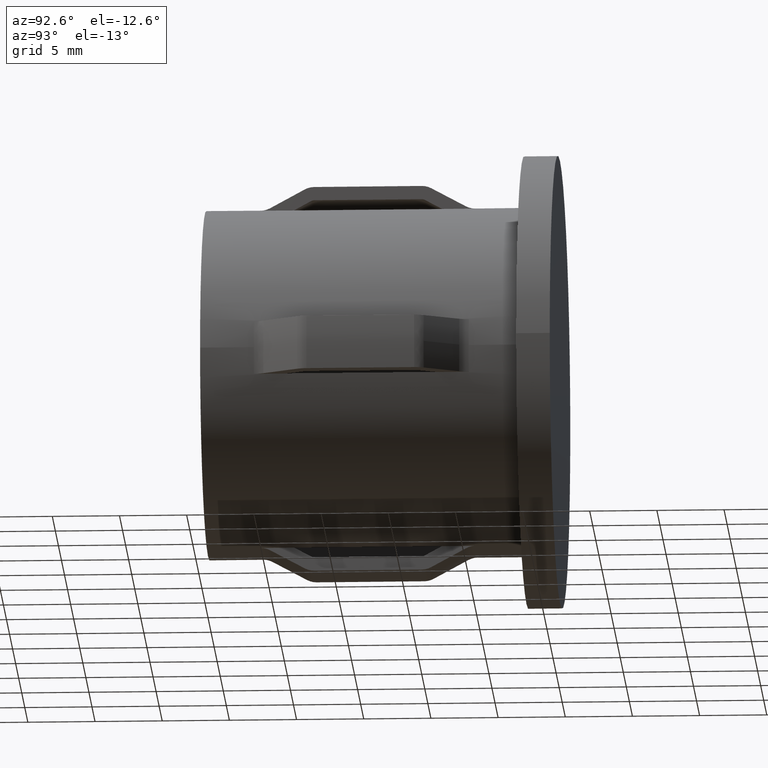
[diagram: clean part render]
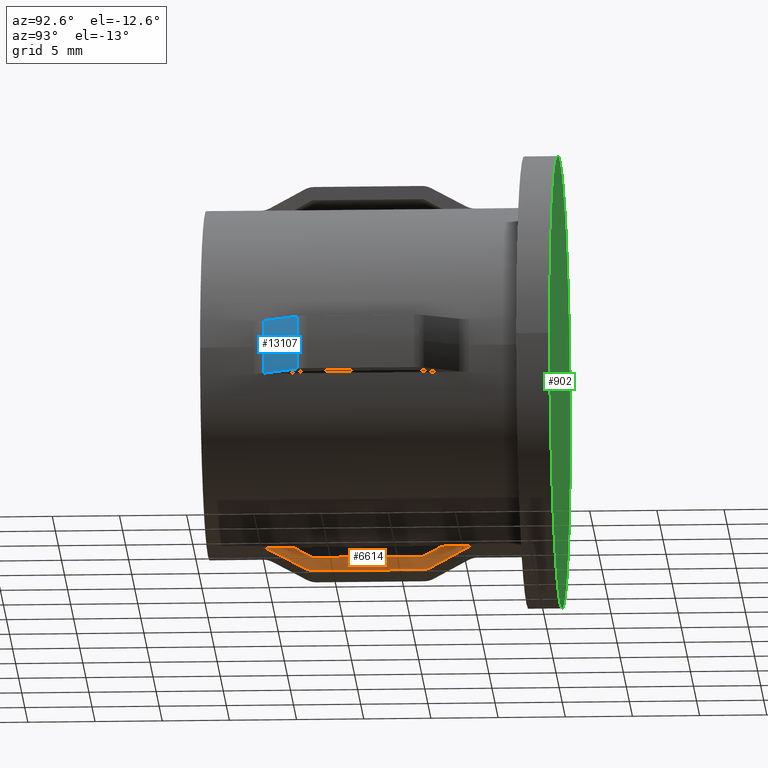
[diagram: same view with three faces highlighted in distinct colors, each labeled with its STEP entity id]
A machine part, auxiliary view with three faces highlighted in distinct colors.
Their STEP definitions:

[orange] entity #6614 — the highlighted planar face has unit normal (-1, 0, -0).
#79 = CARTESIAN_POINT ( 'NONE',  ( 2.000000000000004000, 16.23750266983346100, -13.54311138844929400 ) ) ;
#130 = CARTESIAN_POINT ( 'NONE',  ( 2.000000000000004000, 17.21099630424840800, -13.01172473102613100 ) ) ;
#344 = ORIENTED_EDGE ( 'NONE', *, *, #9128, .F. ) ;
#422 = EDGE_CURVE ( 'NONE', #5947, #8624, #4356, .T. ) ;
#428 = CARTESIAN_POINT ( 'NONE',  ( 2.000000000000004000, 16.71250800950036800, -14.43205297699418900 ) ) ;
#507 = CARTESIAN_POINT ( 'NONE',  ( 2.000000000000004000, 6.763197409493547400, -12.99761089599358100 ) ) ;
#565 = CARTESIAN_POINT ( 'NONE',  ( 2.000000000000004000, 5.519878851326408800, -13.46818463121638300 ) ) ;
#583 = CARTESIAN_POINT ( 'NONE',  ( 2.000000000000004000, 7.958963710358464300, -13.60376786041281200 ) ) ;
#591 = CARTESIAN_POINT ( 'NONE',  ( 2.000000000000004000, 16.08296497210347600, -13.59851344099409200 ) ) ;
#862 = CARTESIAN_POINT ( 'NONE',  ( 2.000000000000004000, 19.51312980253462100, -12.92191155553233600 ) ) ;
#893 = VERTEX_POINT ( 'NONE', #2225 ) ;
#1106 = B_SPLINE_CURVE_WITH_KNOTS ( 'NONE', 3,
 ( #5556, #2291, #8904, #3222, #12265, #4458 ),
 .UNSPECIFIED., .F., .F.,
 ( 4, 2, 4 ),
 ( 0.008903600624988164700, 0.009272269858450147400, 0.009640939091912131800 ),
 .UNSPECIFIED. ) ;
#1189 = CARTESIAN_POINT ( 'NONE',  ( 2.000000000000004000, 26.19999999999999900, -13.60376786041279500 ) ) ;
#1257 = CARTESIAN_POINT ( 'NONE',  ( 2.000000000000004000, 17.51576344125173900, -12.84523257866513300 ) ) ;
#1264 = EDGE_CURVE ( 'NONE', #10358, #8409, #2000, .T. ) ;
#1471 = ORIENTED_EDGE ( 'NONE', *, *, #13452, .F. ) ;
#1526 = CARTESIAN_POINT ( 'NONE',  ( 2.000000000000004000, 6.832820700711934600, -14.18428084532560300 ) ) ;
#1588 = CARTESIAN_POINT ( 'NONE',  ( 2.000000000000004000, 7.877065883082498700, -14.61377774567548800 ) ) ;
#1852 = ORIENTED_EDGE ( 'NONE', *, *, #10068, .F. ) ;
#1964 = ORIENTED_EDGE ( 'NONE', *, *, #9785, .F. ) ;
#2000 = B_SPLINE_CURVE_WITH_KNOTS ( 'NONE', 3,
 ( #9854, #9809, #3230, #862, #11089, #7785 ),
 .UNSPECIFIED., .F., .F.,
 ( 4, 2, 4 ),
 ( 0.008733831604551458400, 0.009102722425335467100, 0.009471613246119475700 ),
 .UNSPECIFIED. ) ;
#2045 = VERTEX_POINT ( 'NONE', #13394 ) ;
#2190 = EDGE_CURVE ( 'NONE', #10358, #13120, #6460, .T. ) ;
#2225 = CARTESIAN_POINT ( 'NONE',  ( 2.000000000000002700, 8.000000000000003600, -13.60376786041279500 ) ) ;
#2291 = CARTESIAN_POINT ( 'NONE',  ( 2.000000000000004000, 16.60460272411954500, -14.49085572785535600 ) ) ;
#2319 = VERTEX_POINT ( 'NONE', #11735 ) ;
#2383 = DIRECTION ( 'NONE',  ( -3.438152136007668400E-017, 0.0000000000000000000, 1.000000000000000000 ) ) ;
#2389 = EDGE_CURVE ( 'NONE', #2045, #11551, #11924, .T. ) ;
#2487 = DIRECTION ( 'NONE',  ( -1.000000000000000000, 0.0000000000000000000, -3.438152136007668400E-017 ) ) ;
#2569 = CARTESIAN_POINT ( 'NONE',  ( 2.000000000000004000, 20.00000000000000000, -14.61377774567548800 ) ) ;
#2693 = CARTESIAN_POINT ( 'NONE',  ( 2.000000000000004000, 7.475868907025222200, -13.38671445498841800 ) ) ;
#2791 = CARTESIAN_POINT ( 'NONE',  ( 2.000000000000004000, 20.00000000000000000, -12.84523257866513300 ) ) ;
#2835 = CARTESIAN_POINT ( 'NONE',  ( 2.000000000000004000, 7.189264759861260700, -13.23027302087236700 ) ) ;
#2943 = ORIENTED_EDGE ( 'NONE', *, *, #2389, .F. ) ;
#2971 = CARTESIAN_POINT ( 'NONE',  ( 2.000000000000004000, 16.71250800950036800, -14.43205297699418900 ) ) ;
#2975 = CARTESIAN_POINT ( 'NONE',  ( 2.000000000000004000, 4.489269370429813200, -12.92274571250335800 ) ) ;
#3036 = ORIENTED_EDGE ( 'NONE', *, *, #7609, .F. ) ;
#3181 = EDGE_CURVE ( 'NONE', #13081, #2319, #8178, .T. ) ;
#3222 = CARTESIAN_POINT ( 'NONE',  ( 2.000000000000004000, 16.24759394174816800, -14.59823789806946200 ) ) ;
#3230 = CARTESIAN_POINT ( 'NONE',  ( 2.000000000000004000, 19.75437373873601700, -12.86044299354603700 ) ) ;
#3318 = CARTESIAN_POINT ( 'NONE',  ( 2.000000000000004000, 7.762497330166533900, -13.54311138844931300 ) ) ;
#3367 = CARTESIAN_POINT ( 'NONE',  ( 2.000000000000004000, 20.00000000000000000, -12.84523257866513300 ) ) ;
#3370 = CARTESIAN_POINT ( 'NONE',  ( 2.000000000000004000, 7.999999999999996400, -14.61377774567548800 ) ) ;
#3740 = EDGE_CURVE ( 'NONE', #12416, #893, #8887, .T. ) ;
#3827 = CARTESIAN_POINT ( 'NONE',  ( 2.000000000000004000, 6.623713609272060800, -12.92142791447136400 ) ) ;
#3886 = CARTESIAN_POINT ( 'NONE',  ( 2.000000000000004000, 5.923637896289913700, -13.68844346346802300 ) ) ;
#3933 = ORIENTED_EDGE ( 'NONE', *, *, #9577, .T. ) ;
#4091 = CARTESIAN_POINT ( 'NONE',  ( 2.000000000000004000, 16.23750266983346100, -13.54311138844929400 ) ) ;
#4150 = CARTESIAN_POINT ( 'NONE',  ( 2.000000000000004000, 4.000000000000000000, -12.84523257866513300 ) ) ;
#4356 = B_SPLINE_CURVE_WITH_KNOTS ( 'NONE', 3,
 ( #5086, #8649, #2975, #8792, #10864, #4150 ),
 .UNSPECIFIED., .F., .F.,
 ( 4, 2, 4 ),
 ( 0.008780512722614439500, 0.009149394502732206500, 0.009518276282849973500 ),
 .UNSPECIFIED. ) ;
#4458 = CARTESIAN_POINT ( 'NONE',  ( 2.000000000000004000, 16.00000000000000000, -14.61377774567548800 ) ) ;
#4475 = LINE ( 'NONE', #1189, #6611 ) ;
#4490 = ORIENTED_EDGE ( 'NONE', *, *, #1264, .F. ) ;
#4645 = DIRECTION ( 'NONE',  ( -0.0000000000000000000, -1.000000000000000000, -0.0000000000000000000 ) ) ;
#4705 = PLANE ( 'NONE',  #11153 ) ;
#4813 = CARTESIAN_POINT ( 'NONE',  ( 2.000000000000004000, 19.28749199049963200, -13.02739711600255700 ) ) ;
#4894 = CARTESIAN_POINT ( 'NONE',  ( 2.000000000000004000, 7.512631403503766200, -14.53709873236259900 ) ) ;
#4974 = CARTESIAN_POINT ( 'NONE',  ( 2.000000000000004000, 7.395658272290249100, -14.49099795728196600 ) ) ;
#5011 = CARTESIAN_POINT ( 'NONE',  ( 2.000000000000004000, 6.378199766889109900, -13.93641627807914900 ) ) ;
#5086 = CARTESIAN_POINT ( 'NONE',  ( 2.000000000000004000, 4.712508009500367300, -13.02739711600256100 ) ) ;
#5131 = CARTESIAN_POINT ( 'NONE',  ( 2.000000000000004000, 16.83631114039712500, -14.36458672975465400 ) ) ;
#5284 = CARTESIAN_POINT ( 'NONE',  ( 2.000000000000004000, 16.20129839814044500, -13.56286601364981900 ) ) ;
#5394 = VERTEX_POINT ( 'NONE', #11043 ) ;
#5535 = ORIENTED_EDGE ( 'NONE', *, *, #11312, .F. ) ;
#5556 = CARTESIAN_POINT ( 'NONE',  ( 2.000000000000004000, 16.71250800950036800, -14.43205297699418900 ) ) ;
#5778 = CARTESIAN_POINT ( 'NONE',  ( 2.000000000000004000, 16.35879584615232200, -13.47692855627201800 ) ) ;
#5831 = CARTESIAN_POINT ( 'NONE',  ( 2.000000000000004000, 17.51576344125173900, -12.84523257866513300 ) ) ;
#5920 = B_SPLINE_CURVE_WITH_KNOTS ( 'NONE', 3,
 ( #14176, #7466, #13091, #13047, #10912, #5131, #2971 ),
 .UNSPECIFIED., .F., .F.,
 ( 4, 3, 4 ),
 ( 0.003473726059147197900, 0.005983937291976790800, 0.006406914848276793100 ),
 .UNSPECIFIED. ) ;
#5946 = CARTESIAN_POINT ( 'NONE',  ( 2.000000000000004000, 4.000000000000000000, -12.84523257866513300 ) ) ;
#5947 = VERTEX_POINT ( 'NONE', #6430 ) ;
#6043 = CARTESIAN_POINT ( 'NONE',  ( 2.000000000000002700, 8.000000000000003600, -13.60376786041279500 ) ) ;
#6121 = CARTESIAN_POINT ( 'NONE',  ( 2.000000000000004000, 4.712508009500367300, -13.02739711600256100 ) ) ;
#6195 = CARTESIAN_POINT ( 'NONE',  ( 2.000000000000004000, 6.902687610284863800, -13.07378215503952000 ) ) ;
#6430 = CARTESIAN_POINT ( 'NONE',  ( 2.000000000000004000, 4.712508009500367300, -13.02739711600256100 ) ) ;
#6440 = B_SPLINE_CURVE_WITH_KNOTS ( 'NONE', 3,
 ( #79, #5778, #10268, #6906, #12650, #130, #5831 ),
 .UNSPECIFIED., .F., .F.,
 ( 4, 3, 4 ),
 ( 0.004868062629946854500, 0.005282586139643083300, 0.006324422785901354100 ),
 .UNSPECIFIED. ) ;
#6460 = LINE ( 'NONE', #3367, #7171 ) ;
#6611 = VECTOR ( 'NONE', #14360, 1000.000000000000000 ) ;
#6614 = ADVANCED_FACE ( 'NONE', ( #14226 ), #4705, .F. ) ;
#6906 = CARTESIAN_POINT ( 'NONE',  ( 2.000000000000004000, 16.60136894398342700, -13.34453860178169600 ) ) ;
#6938 = CARTESIAN_POINT ( 'NONE',  ( 2.000000000000004000, 7.287491990499630000, -14.43205297699419300 ) ) ;
#7077 = CARTESIAN_POINT ( 'NONE',  ( 2.000000000000004000, 7.753247571516230800, -14.59839509575663100 ) ) ;
#7103 = ORIENTED_EDGE ( 'NONE', *, *, #14059, .F. ) ;
#7158 = CARTESIAN_POINT ( 'NONE',  ( 2.000000000000004000, 7.287491990499630000, -14.43205297699419300 ) ) ;
#7171 = VECTOR ( 'NONE', #4645, 1000.000000000000000 ) ;
#7286 = ORIENTED_EDGE ( 'NONE', *, *, #422, .F. ) ;
#7466 = CARTESIAN_POINT ( 'NONE',  ( 2.000000000000004000, 18.55312756011672800, -13.42844339235147500 ) ) ;
#7609 = EDGE_CURVE ( 'NONE', #11551, #9434, #13851, .T. ) ;
#7785 = CARTESIAN_POINT ( 'NONE',  ( 2.000000000000004000, 19.28749199049963200, -13.02739711600255700 ) ) ;
#8178 = B_SPLINE_CURVE_WITH_KNOTS ( 'NONE', 3,
 ( #9629, #12040, #591, #10763, #5284, #4091 ),
 .UNSPECIFIED., .F., .F.,
 ( 4, 2, 4 ),
 ( 0.003036136518779694600, 0.003159131263739859700, 0.003282126008700024900 ),
 .UNSPECIFIED. ) ;
#8372 = EDGE_LOOP ( 'NONE', ( #14492, #1471, #10317, #7103, #9326, #5535, #3933, #7286, #344, #3036, #2943, #1964, #1852, #4490 ) ) ;
#8409 = VERTEX_POINT ( 'NONE', #4813 ) ;
#8624 = VERTEX_POINT ( 'NONE', #5946 ) ;
#8649 = CARTESIAN_POINT ( 'NONE',  ( 2.000000000000004000, 4.604471529493054900, -12.96839694357565500 ) ) ;
#8792 = CARTESIAN_POINT ( 'NONE',  ( 2.000000000000004000, 4.248171644720956800, -12.86087322450340200 ) ) ;
#8887 = B_SPLINE_CURVE_WITH_KNOTS ( 'NONE', 3,
 ( #9529, #10705, #11837, #14122, #583, #6043 ),
 .UNSPECIFIED., .F., .F.,
 ( 4, 2, 4 ),
 ( 0.003007836548008441900, 0.003130776128305318700, 0.003253715708602195500 ),
 .UNSPECIFIED. ) ;
#8904 = CARTESIAN_POINT ( 'NONE',  ( 2.000000000000004000, 16.48781982078699200, -14.53692629991552100 ) ) ;
#9128 = EDGE_CURVE ( 'NONE', #9434, #5947, #11684, .T. ) ;
#9199 = CARTESIAN_POINT ( 'NONE',  ( 2.000000000000003600, 20.00000000000000000, 6.876304272015349100E-017 ) ) ;
#9326 = ORIENTED_EDGE ( 'NONE', *, *, #3740, .F. ) ;
#9393 = CARTESIAN_POINT ( 'NONE',  ( 2.000000000000004000, 7.999999999999996400, -14.61377774567548800 ) ) ;
#9434 = VERTEX_POINT ( 'NONE', #6938 ) ;
#9482 = CARTESIAN_POINT ( 'NONE',  ( 2.000000000000004000, 7.287491990499630000, -14.43205297699419300 ) ) ;
#9529 = CARTESIAN_POINT ( 'NONE',  ( 2.000000000000004000, 7.762497330166533900, -13.54311138844931300 ) ) ;
#9577 = EDGE_CURVE ( 'NONE', #5394, #8624, #13029, .T. ) ;
#9629 = CARTESIAN_POINT ( 'NONE',  ( 2.000000000000004000, 16.00000000000000000, -13.60376786041279300 ) ) ;
#9785 = EDGE_CURVE ( 'NONE', #14177, #2045, #1106, .T. ) ;
#9809 = CARTESIAN_POINT ( 'NONE',  ( 2.000000000000004000, 19.87646638025942300, -12.84523257866511300 ) ) ;
#9854 = CARTESIAN_POINT ( 'NONE',  ( 2.000000000000004000, 19.99999999999999300, -12.84523257866512600 ) ) ;
#10068 = EDGE_CURVE ( 'NONE', #8409, #14177, #5920, .T. ) ;
#10197 = VECTOR ( 'NONE', #10686, 1000.000000000000000 ) ;
#10268 = CARTESIAN_POINT ( 'NONE',  ( 2.000000000000004000, 16.48008467017158900, -13.41073774696090800 ) ) ;
#10317 = ORIENTED_EDGE ( 'NONE', *, *, #3181, .F. ) ;
#10340 = VECTOR ( 'NONE', #13971, 1000.000000000000000 ) ;
#10358 = VERTEX_POINT ( 'NONE', #11351 ) ;
#10686 = DIRECTION ( 'NONE',  ( -0.0000000000000000000, -1.000000000000000000, -0.0000000000000000000 ) ) ;
#10705 = CARTESIAN_POINT ( 'NONE',  ( 2.000000000000004000, 7.798659959552558100, -13.56284329179605300 ) ) ;
#10763 = CARTESIAN_POINT ( 'NONE',  ( 2.000000000000004000, 16.16316286643450400, -13.57792859815825500 ) ) ;
#10864 = CARTESIAN_POINT ( 'NONE',  ( 2.000000000000004000, 4.123647177543184700, -12.84523257866512200 ) ) ;
#10912 = CARTESIAN_POINT ( 'NONE',  ( 2.000000000000004000, 16.96011052680198400, -14.29711361073644200 ) ) ;
#11043 = CARTESIAN_POINT ( 'NONE',  ( 2.000000000000004000, 6.484236558748251300, -12.84523257866513300 ) ) ;
#11089 = CARTESIAN_POINT ( 'NONE',  ( 2.000000000000004000, 19.39643253590401500, -12.96790322132268100 ) ) ;
#11153 = AXIS2_PLACEMENT_3D ( 'NONE', #9199, #2487, #2383 ) ;
#11312 = EDGE_CURVE ( 'NONE', #5394, #12416, #14256, .T. ) ;
#11351 = CARTESIAN_POINT ( 'NONE',  ( 2.000000000000004000, 19.99999999999999300, -12.84523257866512600 ) ) ;
#11420 = CARTESIAN_POINT ( 'NONE',  ( 2.000000000000004000, 16.00000000000000000, -13.60376786041279300 ) ) ;
#11551 = VERTEX_POINT ( 'NONE', #3370 ) ;
#11684 = B_SPLINE_CURVE_WITH_KNOTS ( 'NONE', 3,
 ( #7158, #1526, #5011, #3886, #565, #12925, #6121 ),
 .UNSPECIFIED., .F., .F.,
 ( 4, 3, 4 ),
 ( 0.004430535611126604400, 0.005983935884358522300, 0.007363724876988431800 ),
 .UNSPECIFIED. ) ;
#11735 = CARTESIAN_POINT ( 'NONE',  ( 2.000000000000004000, 16.23750266983346100, -13.54311138844929400 ) ) ;
#11768 = CARTESIAN_POINT ( 'NONE',  ( 2.000000000000004000, 7.762497330166533900, -13.54311138844931300 ) ) ;
#11837 = CARTESIAN_POINT ( 'NONE',  ( 2.000000000000004000, 7.837574834498182600, -13.57818986444574000 ) ) ;
#11924 = LINE ( 'NONE', #2569, #10340 ) ;
#12040 = CARTESIAN_POINT ( 'NONE',  ( 2.000000000000004000, 16.04150043018242400, -13.60376786041278900 ) ) ;
#12265 = CARTESIAN_POINT ( 'NONE',  ( 2.000000000000004000, 16.12294147542693800, -14.61377774567548600 ) ) ;
#12416 = VERTEX_POINT ( 'NONE', #3318 ) ;
#12650 = CARTESIAN_POINT ( 'NONE',  ( 2.000000000000004000, 16.90619697346617300, -13.17815796277381300 ) ) ;
#12925 = CARTESIAN_POINT ( 'NONE',  ( 2.000000000000004000, 5.116166389746523700, -13.24784037770894500 ) ) ;
#13029 = LINE ( 'NONE', #2791, #10197 ) ;
#13047 = CARTESIAN_POINT ( 'NONE',  ( 2.000000000000004000, 17.08390600611519300, -14.22963332444452300 ) ) ;
#13081 = VERTEX_POINT ( 'NONE', #11420 ) ;
#13091 = CARTESIAN_POINT ( 'NONE',  ( 2.000000000000004000, 17.81858497931024500, -13.82916355188984000 ) ) ;
#13120 = VERTEX_POINT ( 'NONE', #1257 ) ;
#13394 = CARTESIAN_POINT ( 'NONE',  ( 2.000000000000004000, 16.00000000000000000, -14.61377774567548800 ) ) ;
#13452 = EDGE_CURVE ( 'NONE', #2319, #13120, #6440, .T. ) ;
#13851 = B_SPLINE_CURVE_WITH_KNOTS ( 'NONE', 3,
 ( #9393, #1588, #7077, #4894, #4974, #9482 ),
 .UNSPECIFIED., .F., .F.,
 ( 4, 2, 4 ),
 ( 0.008844020714262412400, 0.009212683432086601900, 0.009581346149910793100 ),
 .UNSPECIFIED. ) ;
#13971 = DIRECTION ( 'NONE',  ( -0.0000000000000000000, -1.000000000000000000, -0.0000000000000000000 ) ) ;
#13996 = CARTESIAN_POINT ( 'NONE',  ( 2.000000000000004000, 6.484236558748251300, -12.84523257866513300 ) ) ;
#14059 = EDGE_CURVE ( 'NONE', #893, #13081, #4475, .T. ) ;
#14122 = CARTESIAN_POINT ( 'NONE',  ( 2.000000000000004000, 7.917927303715236700, -13.59866907585652200 ) ) ;
#14176 = CARTESIAN_POINT ( 'NONE',  ( 2.000000000000004000, 19.28749199049963200, -13.02739711600255700 ) ) ;
#14177 = VERTEX_POINT ( 'NONE', #428 ) ;
#14226 = FACE_OUTER_BOUND ( 'NONE', #8372, .T. ) ;
#14256 = B_SPLINE_CURVE_WITH_KNOTS ( 'NONE', 3,
 ( #13996, #3827, #507, #6195, #2835, #2693, #11768 ),
 .UNSPECIFIED., .F., .F.,
 ( 4, 3, 4 ),
 ( 0.004805790641137201400, 0.005282588220807113400, 0.006262150178844542700 ),
 .UNSPECIFIED. ) ;
#14360 = DIRECTION ( 'NONE',  ( 7.347880794884120200E-017, 1.000000000000000000, -0.0000000000000000000 ) ) ;
#14492 = ORIENTED_EDGE ( 'NONE', *, *, #2190, .T. ) ;

[blue] entity #13107 — the highlighted conical surface has half-angle 28.36 deg.
#154 = DIRECTION ( 'NONE',  ( -1.000000000000000000, 6.580880510488071800E-017, 0.0000000000000000000 ) ) ;
#301 = DIRECTION ( 'NONE',  ( 7.347880794884120200E-017, 1.000000000000000000, -0.0000000000000000000 ) ) ;
#562 = CARTESIAN_POINT ( 'NONE',  ( 13.15578814950747600, 4.947627587827704500, 2.000000000000000000 ) ) ;
#614 = CARTESIAN_POINT ( 'NONE',  ( 13.02739711600256100, 4.712508009500365500, 2.000000000000000000 ) ) ;
#663 = CARTESIAN_POINT ( 'NONE',  ( 13.09159684043990200, 4.830065500611811800, 2.000000000000000000 ) ) ;
#962 = EDGE_LOOP ( 'NONE', ( #1627, #8294, #4348, #4834 ) ) ;
#1078 = CARTESIAN_POINT ( 'NONE',  ( -1.211481257527979600E-015, 4.712508009500366400, 0.0000000000000000000 ) ) ;
#1135 = CARTESIAN_POINT ( 'NONE',  ( 14.43205297699419300, 7.287491990499629100, -2.000000000000000000 ) ) ;
#1627 = ORIENTED_EDGE ( 'NONE', *, *, #8634, .F. ) ;
#1661 = VERTEX_POINT ( 'NONE', #7939 ) ;
#2024 = DIRECTION ( 'NONE',  ( 7.347880794884120200E-017, 1.000000000000000000, -0.0000000000000000000 ) ) ;
#2176 = AXIS2_PLACEMENT_3D ( 'NONE', #5999, #301, #2584 ) ;
#2333 = CARTESIAN_POINT ( 'NONE',  ( -1.211481257527979600E-015, 4.712508009500366400, 0.0000000000000000000 ) ) ;
#2584 = DIRECTION ( 'NONE',  ( -1.000000000000000000, 5.953076621728368300E-017, 0.0000000000000000000 ) ) ;
#3126 = CARTESIAN_POINT ( 'NONE',  ( 13.02739711600256100, 4.712508009500365500, -1.999999999999999600 ) ) ;
#3333 = EDGE_CURVE ( 'NONE', #1661, #6082, #9706, .T. ) ;
#4167 = AXIS2_PLACEMENT_3D ( 'NONE', #1078, #2024, #5531 ) ;
#4348 = ORIENTED_EDGE ( 'NONE', *, *, #8842, .T. ) ;
#4440 = CARTESIAN_POINT ( 'NONE',  ( 13.02739711600256100, 4.712508009500365500, -1.999999999999999600 ) ) ;
#4582 = CARTESIAN_POINT ( 'NONE',  ( 13.62429162549002700, 5.805800145407471500, -1.999999999999999600 ) ) ;
#4834 = ORIENTED_EDGE ( 'NONE', *, *, #3333, .F. ) ;
#5531 = DIRECTION ( 'NONE',  ( -1.000000000000000000, 6.580880510488071800E-017, 0.0000000000000000000 ) ) ;
#5657 = DIRECTION ( 'NONE',  ( 7.347880794884120200E-017, 1.000000000000000000, -0.0000000000000000000 ) ) ;
#5705 = VERTEX_POINT ( 'NONE', #12772 ) ;
#5999 = CARTESIAN_POINT ( 'NONE',  ( -1.022274504116792200E-015, 7.287491990499630000, 0.0000000000000000000 ) ) ;
#6082 = VERTEX_POINT ( 'NONE', #3126 ) ;
#6250 = CARTESIAN_POINT ( 'NONE',  ( 14.43205297699419300, 7.287491990499629100, 2.000000000000000000 ) ) ;
#6261 = CONICAL_SURFACE ( 'NONE', #11566, 13.18002563040117500, 0.4949700996280865200 ) ;
#6271 = EDGE_CURVE ( 'NONE', #5705, #12260, #9786, .T. ) ;
#6851 = CIRCLE ( 'NONE', #2176, 14.56997436959883500 ) ;
#7344 = CARTESIAN_POINT ( 'NONE',  ( 13.62429162549002700, 5.805800145407471500, 2.000000000000000000 ) ) ;
#7444 = CARTESIAN_POINT ( 'NONE',  ( 13.21997140290930300, 5.065194072494913200, 2.000000000000000000 ) ) ;
#7939 = CARTESIAN_POINT ( 'NONE',  ( 14.43205297699419300, 7.287491990499629100, -2.000000000000000000 ) ) ;
#8294 = ORIENTED_EDGE ( 'NONE', *, *, #6271, .T. ) ;
#8426 = CIRCLE ( 'NONE', #4167, 13.18002563040117500 ) ;
#8634 = EDGE_CURVE ( 'NONE', #5705, #1661, #6851, .T. ) ;
#8842 = EDGE_CURVE ( 'NONE', #12260, #6082, #8426, .T. ) ;
#8933 = CARTESIAN_POINT ( 'NONE',  ( 14.02829437306233000, 6.546579588542636300, -2.000000000000000000 ) ) ;
#9706 = B_SPLINE_CURVE_WITH_KNOTS ( 'NONE', 3,
 ( #1135, #8933, #4582, #12492, #11207, #14565, #4440 ),
 .UNSPECIFIED., .F., .F.,
 ( 4, 3, 4 ),
 ( 0.003452583159256826900, 0.005983936259087485400, 0.006385772332203958400 ),
 .UNSPECIFIED. ) ;
#9786 = B_SPLINE_CURVE_WITH_KNOTS ( 'NONE', 3,
 ( #6250, #14102, #7344, #7444, #562, #663, #614 ),
 .UNSPECIFIED., .F., .F.,
 ( 4, 3, 4 ),
 ( 0.003452583159256826900, 0.005983936259087485400, 0.006385772332203958400 ),
 .UNSPECIFIED. ) ;
#9791 = FACE_OUTER_BOUND ( 'NONE', #962, .T. ) ;
#10925 = CARTESIAN_POINT ( 'NONE',  ( 13.02739711600256100, 4.712508009500365500, 2.000000000000000000 ) ) ;
#11207 = CARTESIAN_POINT ( 'NONE',  ( 13.15578814950747600, 4.947627587827704500, -1.999999999999999600 ) ) ;
#11566 = AXIS2_PLACEMENT_3D ( 'NONE', #2333, #5657, #154 ) ;
#12260 = VERTEX_POINT ( 'NONE', #10925 ) ;
#12492 = CARTESIAN_POINT ( 'NONE',  ( 13.21997140290930300, 5.065194072494913200, -1.999999999999999600 ) ) ;
#12772 = CARTESIAN_POINT ( 'NONE',  ( 14.43205297699419300, 7.287491990499629100, 2.000000000000000000 ) ) ;
#13107 = ADVANCED_FACE ( 'NONE', ( #9791 ), #6261, .T. ) ;
#14102 = CARTESIAN_POINT ( 'NONE',  ( 14.02829437306233000, 6.546579588542636300, 2.000000000000000000 ) ) ;
#14565 = CARTESIAN_POINT ( 'NONE',  ( 13.09159684043990200, 4.830065500611811800, -1.999999999999999600 ) ) ;

[green] entity #902 — the highlighted planar face has unit normal (-0, -1, 0).
#161 = AXIS2_PLACEMENT_3D ( 'NONE', #8058, #9084, #11258 ) ;
#902 = ADVANCED_FACE ( 'NONE', ( #1875 ), #1188, .F. ) ;
#1188 = PLANE ( 'NONE',  #161 ) ;
#1875 = FACE_OUTER_BOUND ( 'NONE', #7895, .T. ) ;
#2094 = CIRCLE ( 'NONE', #5864, 16.85000000000000100 ) ;
#2899 = CARTESIAN_POINT ( 'NONE',  ( 3.673940397442063800E-016, 26.19999999999999900, 0.0000000000000000000 ) ) ;
#3269 = DIRECTION ( 'NONE',  ( 7.347880794884120200E-017, 1.000000000000000000, -0.0000000000000000000 ) ) ;
#3440 = EDGE_CURVE ( 'NONE', #11224, #8522, #2094, .T. ) ;
#3911 = CARTESIAN_POINT ( 'NONE',  ( -16.85000000000000100, 26.19999999999999900, 0.0000000000000000000 ) ) ;
#4558 = CIRCLE ( 'NONE', #5689, 16.85000000000000100 ) ;
#4777 = ORIENTED_EDGE ( 'NONE', *, *, #3440, .T. ) ;
#5689 = AXIS2_PLACEMENT_3D ( 'NONE', #2899, #7350, #9661 ) ;
#5864 = AXIS2_PLACEMENT_3D ( 'NONE', #13395, #3269, #13253 ) ;
#7350 = DIRECTION ( 'NONE',  ( 7.347880794884120200E-017, 1.000000000000000000, -0.0000000000000000000 ) ) ;
#7895 = EDGE_LOOP ( 'NONE', ( #8877, #4777 ) ) ;
#8058 = CARTESIAN_POINT ( 'NONE',  ( 3.673940397442063300E-016, 26.19999999999999900, 0.0000000000000000000 ) ) ;
#8128 = EDGE_CURVE ( 'NONE', #8522, #11224, #4558, .T. ) ;
#8522 = VERTEX_POINT ( 'NONE', #3911 ) ;
#8877 = ORIENTED_EDGE ( 'NONE', *, *, #8128, .T. ) ;
#9084 = DIRECTION ( 'NONE',  ( -7.347880794884120200E-017, -1.000000000000000000, 0.0000000000000000000 ) ) ;
#9661 = DIRECTION ( 'NONE',  ( -1.000000000000000000, 0.0000000000000000000, 0.0000000000000000000 ) ) ;
#11224 = VERTEX_POINT ( 'NONE', #13711 ) ;
#11258 = DIRECTION ( 'NONE',  ( 1.000000000000000000, -7.347880794884120200E-017, 0.0000000000000000000 ) ) ;
#13253 = DIRECTION ( 'NONE',  ( -1.000000000000000000, 0.0000000000000000000, 0.0000000000000000000 ) ) ;
#13395 = CARTESIAN_POINT ( 'NONE',  ( 3.673940397442063800E-016, 26.19999999999999900, 0.0000000000000000000 ) ) ;
#13711 = CARTESIAN_POINT ( 'NONE',  ( 16.85000000000000100, 26.19999999999999900, 2.063529856563289800E-015 ) ) ;